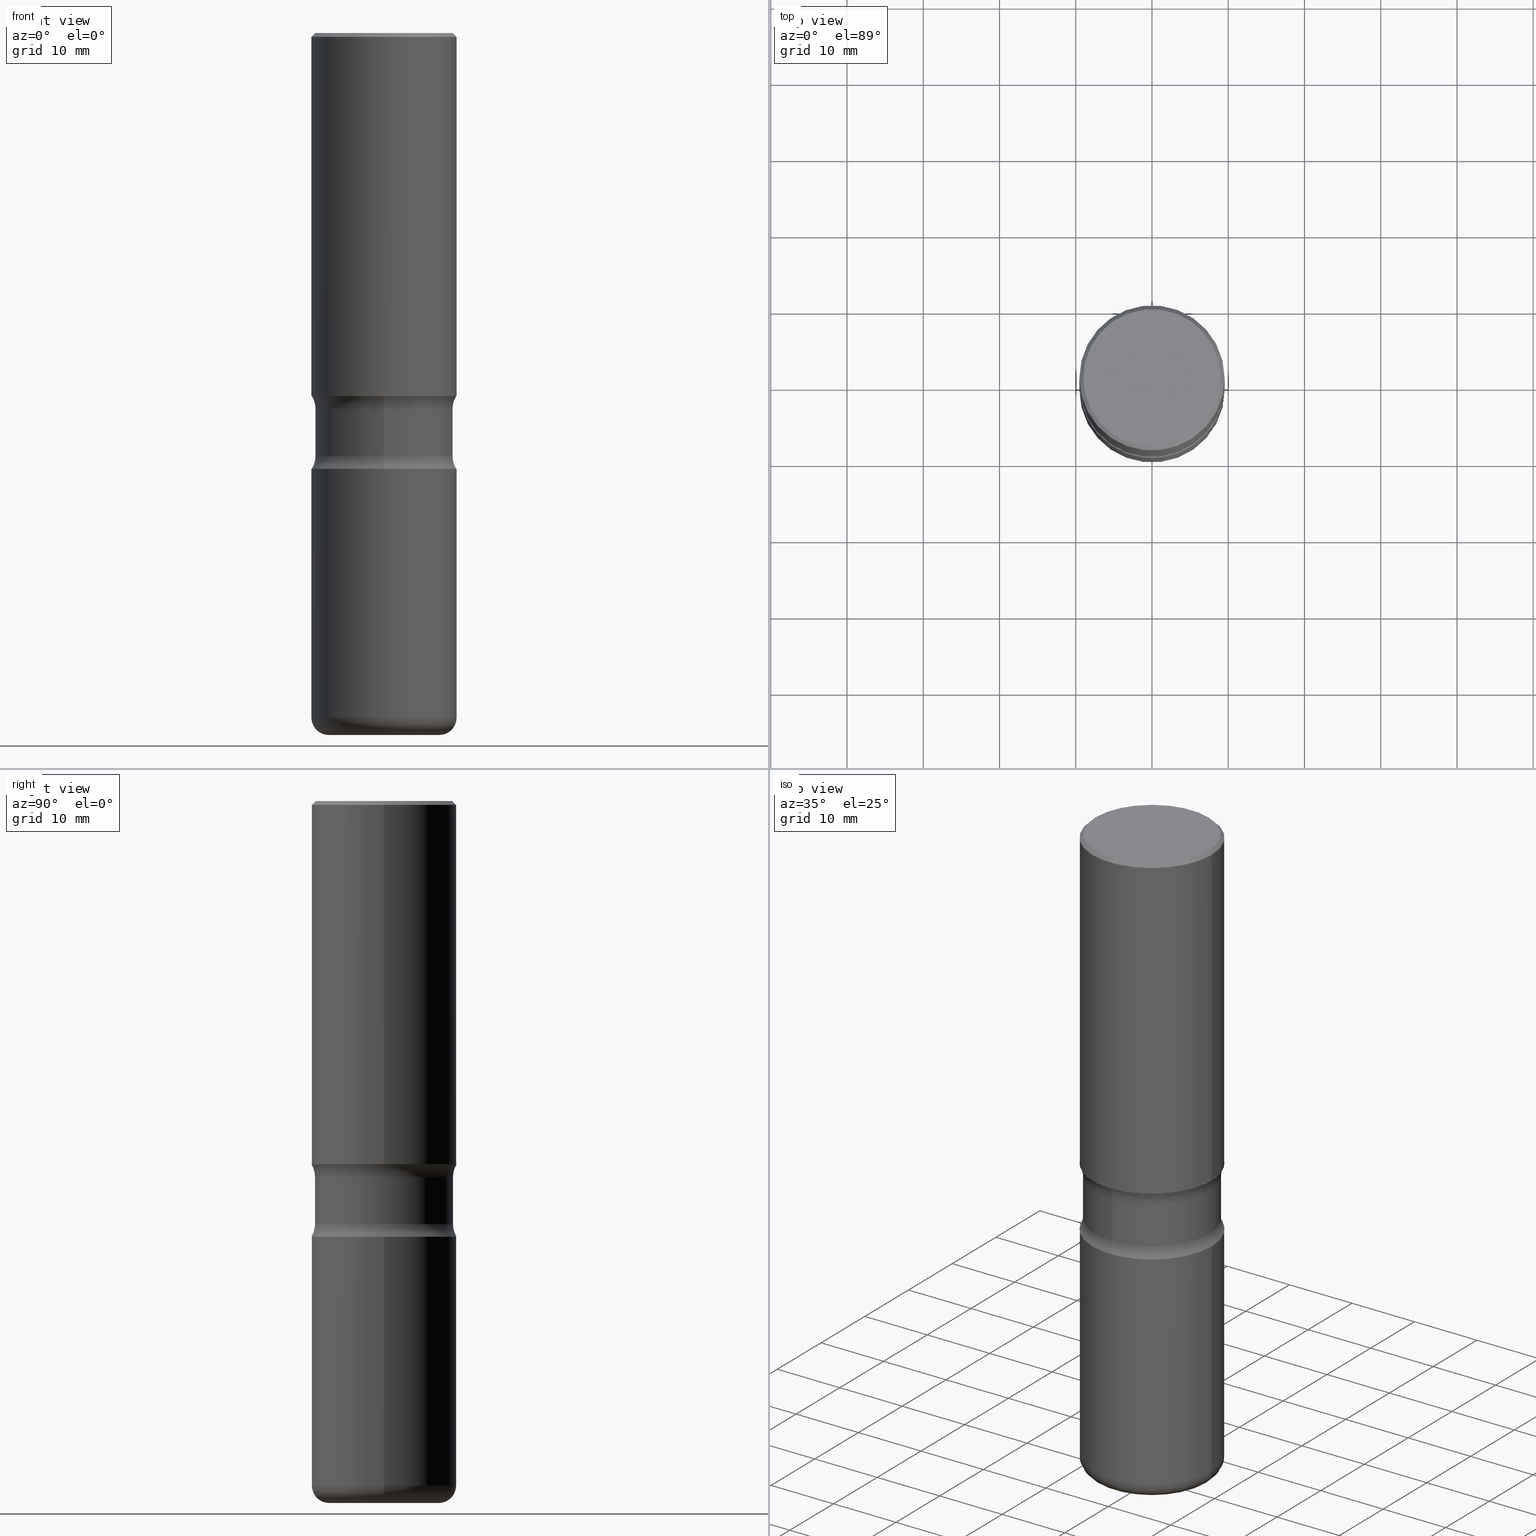
[diagram: canonical four-view strip — front | top / right | iso, engineering-drawing reading convention]
A machine part, canonical four-view strip (front | top / right | iso — engineering-drawing reading convention). The complete STEP part file that produces these views, byte-faithful:
ISO-10303-21;
HEADER;
FILE_DESCRIPTION (( 'STEP AP203' ),
    '1' );
FILE_NAME ('34114.STEP',
    '2024-03-01T23:05:25',
    ( '' ),
    ( '' ),
    'SwSTEP 2.0',
    'SolidWorks 2023',
    '' );
FILE_SCHEMA (( 'CONFIG_CONTROL_DESIGN' ));
ENDSEC;

DATA;
#1 = DIRECTION ( 'NONE',  ( -2.445468806185136597E-29, 3.491481338843145583E-15, 1.000000000000000000 ) ) ;
#2 = AXIS2_PLACEMENT_3D ( 'NONE', #443, #350, #315 ) ;
#3 = AXIS2_PLACEMENT_3D ( 'NONE', #113, #199, #242 ) ;
#4 = DIRECTION ( 'NONE',  ( -2.445468806185136597E-29, 3.491481338843145583E-15, 1.000000000000000000 ) ) ;
#5 = DIRECTION ( 'NONE',  ( -2.445468806185136597E-29, 3.491481338843145583E-15, 1.000000000000000000 ) ) ;
#6 = ORIENTED_EDGE ( 'NONE', *, *, #20, .T. ) ;
#7 = DIRECTION ( 'NONE',  ( 1.000000000000000000, -6.982962677686265922E-15, 4.876176775795935793E-29 ) ) ;
#8 = ADVANCED_FACE ( 'NONE', ( #183 ), #86, .T. ) ;
#9 = LINE ( 'NONE', #526, #460 ) ;
#10 = AXIS2_PLACEMENT_3D ( 'NONE', #505, #550, #253 ) ;
#11 = CIRCLE ( 'NONE', #402, 0.3750000000000003886 ) ;
#12 = CC_DESIGN_APPROVAL ( #281, ( #88 ) ) ;
#13 = CARTESIAN_POINT ( 'NONE',  ( 2.489426194595200956E-15, 0.3564999999999931557, -1.940442723048482199 ) ) ;
#14 = EDGE_LOOP ( 'NONE', ( #177, #515, #106, #327 ) ) ;
#15 = EDGE_LOOP ( 'NONE', ( #398, #235, #65, #166 ) ) ;
#16 = CARTESIAN_POINT ( 'NONE',  ( -1.043851414335219820E-46, 1.490343170380447200E-32, 4.268512490100411279E-18 ) ) ;
#17 = EDGE_CURVE ( 'NONE', #92, #85, #174, .T. ) ;
#18 = DIRECTION ( 'NONE',  ( -2.445468806185136597E-29, 3.491481338843145583E-15, 1.000000000000000000 ) ) ;
#19 = AXIS2_PLACEMENT_3D ( 'NONE', #534, #267, #404 ) ;
#20 = EDGE_CURVE ( 'NONE', #190, #343, #378, .T. ) ;
#21 = CARTESIAN_POINT ( 'NONE',  ( 2.618611004132398137E-15, 0.3749999999999938383, -1.875000000000001998 ) ) ;
#22 = CARTESIAN_POINT ( 'NONE',  ( -0.3750000000000002220, -9.677851273710145206E-15, -3.535000000000000586 ) ) ;
#23 = ORIENTED_EDGE ( 'NONE', *, *, #151, .T. ) ;
#24 = DIRECTION ( 'NONE',  ( 2.412880205859895394E-29, -3.538150069336831953E-15, -1.000000000000000000 ) ) ;
#25 = EDGE_LOOP ( 'NONE', ( #432, #71 ) ) ;
#26 = UNCERTAINTY_MEASURE_WITH_UNIT (LENGTH_MEASURE( 1.000000000000000082E-05 ), #313, 'distance_accuracy_value', 'NONE');
#27 = CC_DESIGN_PERSON_AND_ORGANIZATION_ASSIGNMENT ( #365, #329, ( #111 ) ) ;
#28 = ORIENTED_EDGE ( 'NONE', *, *, #416, .F. ) ;
#29 = EDGE_CURVE ( 'NONE', #306, #426, #167, .T. ) ;
#30 = DIRECTION ( 'NONE',  ( 6.982962677686265922E-15, 1.000000000000000000, -3.831483862081716154E-15 ) ) ;
#31 = EDGE_LOOP ( 'NONE', ( #319, #399 ) ) ;
#32 = AXIS2_PLACEMENT_3D ( 'NONE', #364, #544, #510 ) ;
#33 = APPROVAL_DATE_TIME ( #116, #115 ) ;
#34 = CARTESIAN_POINT ( 'NONE',  ( -3.303329785926938795E-15, -0.4815000000000076996, -2.184557276951518912 ) ) ;
#35 = CALENDAR_DATE ( 2024, 1, 3 ) ;
#36 = CARTESIAN_POINT ( 'NONE',  ( -1.043851414335219820E-46, 1.490343170380447200E-32, 4.268512490100411279E-18 ) ) ;
#37 = DIRECTION ( 'NONE',  ( 2.412880205859895394E-29, -3.538150069336831953E-15, -1.000000000000000000 ) ) ;
#38 = CALENDAR_DATE ( 2024, 1, 3 ) ;
#39 = DIRECTION ( 'NONE',  ( -2.445468806185136597E-29, 3.491481338843145583E-15, 1.000000000000000000 ) ) ;
#40 = APPROVAL ( #334, 'UNSPECIFIED' ) ;
#41 = CIRCLE ( 'NONE', #168, 0.2850000000000004197 ) ;
#42 = DATE_AND_TIME ( #422, #201 ) ;
#43 = DIRECTION ( 'NONE',  ( 2.438088387897960049E-29, -3.491481338843145188E-15, -1.000000000000000000 ) ) ;
#44 = VERTEX_POINT ( 'NONE', #215 ) ;
#45 = DIRECTION ( 'NONE',  ( 1.000000000000000000, -6.982962677686265922E-15, 0.000000000000000000 ) ) ;
#46 = MANIFOLD_SOLID_BREP ( 'Body-Move/Copy2[4]', #269 ) ;
#47 = FACE_OUTER_BOUND ( 'NONE', #314, .T. ) ;
#48 = PRODUCT_DEFINITION_SHAPE ( 'NONE', 'NONE',  #461 ) ;
#49 = DIRECTION ( 'NONE',  ( 6.982962677686265922E-15, 1.000000000000000000, -3.538150069336831953E-15 ) ) ;
#50 = DIRECTION ( 'NONE',  ( 2.412880205859895394E-29, -3.538150069336831953E-15, -1.000000000000000000 ) ) ;
#51 = EDGE_CURVE ( 'NONE', #85, #92, #390, .T. ) ;
#52 = CIRCLE ( 'NONE', #110, 0.08999999999999962197 ) ;
#53 = DIRECTION ( 'NONE',  ( 1.000000000000000000, -6.982962677686265922E-15, 4.876176775795935793E-29 ) ) ;
#54 = APPLICATION_CONTEXT ( 'configuration controlled 3d designs of mechanical parts and assemblies' ) ;
#55 = DIRECTION ( 'NONE',  ( -2.445468806185136877E-29, 3.491481338843145188E-15, 1.000000000000000000 ) ) ;
#56 = DIRECTION ( 'NONE',  ( 2.412880205859895114E-29, -3.538150069336831953E-15, -1.000000000000000000 ) ) ;
#57 = ADVANCED_FACE ( 'NONE', ( #141 ), #179, .F. ) ;
#58 = CARTESIAN_POINT ( 'NONE',  ( -2.509227142684884613E-15, -0.3565000000000076441, -2.184557276951519356 ) ) ;
#59 = VERTEX_POINT ( 'NONE', #13 ) ;
#60 = CIRCLE ( 'NONE', #10, 0.3750000000000003886 ) ;
#61 = DIRECTION ( 'NONE',  ( 1.000000000000000000, -6.982962677686276177E-15, 0.000000000000000000 ) ) ;
#62 = TOROIDAL_SURFACE ( 'NONE', #361, 0.2850000000000004197, 0.08999999999999963585 ) ;
#63 = ORIENTED_EDGE ( 'NONE', *, *, #185, .T. ) ;
#64 = DIRECTION ( 'NONE',  ( 2.412880205859895394E-29, -3.538150069336831953E-15, -1.000000000000000000 ) ) ;
#65 = ORIENTED_EDGE ( 'NONE', *, *, #29, .T. ) ;
#66 = CARTESIAN_POINT ( 'NONE',  ( 0.2850000000000004197, -1.433253089595111070E-14, -3.535000000000000586 ) ) ;
#67 = ORIENTED_EDGE ( 'NONE', *, *, #130, .F. ) ;
#68 = ORIENTED_EDGE ( 'NONE', *, *, #514, .T. ) ;
#69 = DIRECTION ( 'NONE',  ( -2.445468806185136597E-29, 3.491481338843145583E-15, 1.000000000000000000 ) ) ;
#70 = CIRCLE ( 'NONE', #391, 0.3750000000000002220 ) ;
#71 = ORIENTED_EDGE ( 'NONE', *, *, #309, .F. ) ;
#72 = CARTESIAN_POINT ( 'NONE',  ( 5.344399362855309954E-29, -7.624286837305509561E-15, -2.184557276951520688 ) ) ;
#73 = EDGE_CURVE ( 'NONE', #475, #448, #518, .T. ) ;
#74 = SECURITY_CLASSIFICATION_LEVEL ( 'unclassified' ) ;
#75 = DIRECTION ( 'NONE',  ( -1.000000000000000000, 6.982962677686265922E-15, -4.876176775795935793E-29 ) ) ;
#76 = CARTESIAN_POINT ( 'NONE',  ( 0.3750000000000002220, -2.642516375941189606E-15, -0.02000000000000013572 ) ) ;
#77 = AXIS2_PLACEMENT_3D ( 'NONE', #488, #456, #236 ) ;
#78 = LOCAL_TIME ( 18, 5, 25.00000000000000000, #556 ) ;
#79 = DIRECTION ( 'NONE',  ( 1.000000000000000000, -6.860497997771530774E-15, 4.840227352509949110E-29 ) ) ;
#80 = ADVANCED_FACE ( 'NONE', ( #548 ), #136, .F. ) ;
#81 = CALENDAR_DATE ( 2024, 1, 3 ) ;
#82 = CARTESIAN_POINT ( 'NONE',  ( 5.502304813916559585E-29, -7.855833012397080026E-15, -2.250000000000000888 ) ) ;
#83 = APPROVAL_ROLE ( '' ) ;
#84 = CYLINDRICAL_SURFACE ( 'NONE', #154, 0.3564999999999999836 ) ;
#85 = VERTEX_POINT ( 'NONE', #22 ) ;
#86 = CONICAL_SURFACE ( 'NONE', #261, 0.3750000000000002220, 0.7853981633974463916 ) ;
#87 = AXIS2_PLACEMENT_3D ( 'NONE', #305, #449, #99 ) ;
#88 = SECURITY_CLASSIFICATION ( '', '', #74 ) ;
#89 = CARTESIAN_POINT ( 'NONE',  ( 5.502304813916559585E-29, -7.855833012397080026E-15, -2.250000000000000888 ) ) ;
#90 = CARTESIAN_POINT ( 'NONE',  ( -2.445767536205462640E-15, -0.3565000000000126956, -3.624999999999999556 ) ) ;
#91 = ADVANCED_FACE ( 'NONE', ( #540 ), #421, .F. ) ;
#92 = VERTEX_POINT ( 'NONE', #206 ) ;
#93 = DIRECTION ( 'NONE',  ( 1.000000000000000000, -6.982962677686267499E-15, 4.883557194083113462E-29 ) ) ;
#94 = DIRECTION ( 'NONE',  ( 1.000000000000000000, -6.982962677686266711E-15, 4.876231632511985941E-29 ) ) ;
#95 = DIRECTION ( 'NONE',  ( -1.000000000000000000, 6.982962677686265922E-15, -4.883557194083112340E-29 ) ) ;
#96 = CIRCLE ( 'NONE', #425, 0.3564999999999999836 ) ;
#97 = DIRECTION ( 'NONE',  ( 2.412880205859895394E-29, -3.538150069336831953E-15, -1.000000000000000000 ) ) ;
#98 = DIRECTION ( 'NONE',  ( -2.445468806185136597E-29, 3.491481338843145583E-15, 1.000000000000000000 ) ) ;
#99 = DIRECTION ( 'NONE',  ( -6.982962677686269077E-15, -1.000000000000000000, 0.000000000000000000 ) ) ;
#100 = ORIENTED_EDGE ( 'NONE', *, *, #405, .T. ) ;
#101 = DIMENSIONAL_EXPONENTS ( 1.000000000000000000, 0.000000000000000000, 0.000000000000000000, 0.000000000000000000, 0.000000000000000000, 0.000000000000000000, 0.000000000000000000 ) ;
#102 = CIRCLE ( 'NONE', #446, 0.3550000000000001488 ) ;
#103 = ORIENTED_EDGE ( 'NONE', *, *, #440, .T. ) ;
#104 = DIRECTION ( 'NONE',  ( 0.7071067811865461294, -7.319954787623251312E-15, -0.7071067811865489050 ) ) ;
#105 = CARTESIAN_POINT ( 'NONE',  ( 5.342266676109687941E-29, -7.627340966110231428E-15, -2.184557276951520688 ) ) ;
#106 = ORIENTED_EDGE ( 'NONE', *, *, #160, .F. ) ;
#107 = AXIS2_PLACEMENT_3D ( 'NONE', #188, #37, #511 ) ;
#108 = ORIENTED_EDGE ( 'NONE', *, *, #368, .F. ) ;
#109 = CC_DESIGN_DATE_AND_TIME_ASSIGNMENT ( #169, #119, ( #88 ) ) ;
#110 = AXIS2_PLACEMENT_3D ( 'NONE', #366, #376, #560 ) ;
#111 = PRODUCT_DEFINITION_FORMATION_WITH_SPECIFIED_SOURCE ( 'ANY', '', #118, .NOT_KNOWN. ) ;
#112 = APPROVAL_DATE_TIME ( #42, #281 ) ;
#113 = CARTESIAN_POINT ( 'NONE',  ( 5.342266676109687941E-29, -7.627340966110231428E-15, -2.184557276951520688 ) ) ;
#114 = CARTESIAN_POINT ( 'NONE',  ( 4.755380187780347497E-29, -6.760572911487338460E-15, -1.940442723048480866 ) ) ;
#115 = APPROVAL ( #375, 'UNSPECIFIED' ) ;
#116 = DATE_AND_TIME ( #81, #78 ) ;
#117 = DIRECTION ( 'NONE',  ( 6.982962677686266711E-15, 1.000000000000000000, -3.642463991552348591E-15 ) ) ;
#118 = PRODUCT ( '34114', '34114', '', ( #290 ) ) ;
#119 = DATE_TIME_ROLE ( 'classification_date' ) ;
#120 = CARTESIAN_POINT ( 'NONE',  ( 0.3750000000000003886, -2.618611004132352383E-15, 1.828566290923477884E-29 ) ) ;
#121 = ORIENTED_EDGE ( 'NONE', *, *, #405, .F. ) ;
#122 = DIRECTION ( 'NONE',  ( -1.000000000000000000, 6.982962677686266711E-15, 0.000000000000000000 ) ) ;
#123 = CC_DESIGN_PERSON_AND_ORGANIZATION_ASSIGNMENT ( #369, #508, ( #111 ) ) ;
#124 = AXIS2_PLACEMENT_3D ( 'NONE', #285, #162, #424 ) ;
#125 = EDGE_CURVE ( 'NONE', #213, #303, #434, .T. ) ;
#126 = CIRCLE ( 'NONE', #278, 0.3564999999999999281 ) ;
#127 = CARTESIAN_POINT ( 'NONE',  ( 0.000000000000000000, 0.000000000000000000, 0.000000000000000000 ) ) ;
#128 = DIRECTION ( 'NONE',  ( 1.000000000000000000, -6.982962677686265922E-15, 4.876176775795935793E-29 ) ) ;
#129 = ADVANCED_BREP_SHAPE_REPRESENTATION ( '34114', ( #409, #219, #46, #135 ), #413 ) ;
#130 = EDGE_CURVE ( 'NONE', #213, #44, #276, .T. ) ;
#131 = PLANE ( 'NONE',  #243 ) ;
#132 = TOROIDAL_SURFACE ( 'NONE', #436, 0.4815000000000000391, 0.1250000000000000278 ) ;
#133 = ADVANCED_FACE ( 'NONE', ( #467 ), #217, .T. ) ;
#134 = CARTESIAN_POINT ( 'NONE',  ( 5.344399362855309954E-29, -7.624286837305509561E-15, -2.184557276951520688 ) ) ;
#135 = AXIS2_PLACEMENT_3D ( 'NONE', #551, #280, #363 ) ;
#136 = PLANE ( 'NONE',  #2 ) ;
#137 = FACE_OUTER_BOUND ( 'NONE', #14, .T. ) ;
#138 = ORIENTED_EDGE ( 'NONE', *, *, #265, .T. ) ;
#139 = DIRECTION ( 'NONE',  ( 1.000000000000000000, -6.860497997771530774E-15, 4.840227352509949110E-29 ) ) ;
#140 = VERTEX_POINT ( 'NONE', #76 ) ;
#141 = FACE_OUTER_BOUND ( 'NONE', #490, .T. ) ;
#142 = CC_DESIGN_PERSON_AND_ORGANIZATION_ASSIGNMENT ( #321, #288, ( #88 ) ) ;
#143 = ADVANCED_FACE ( 'NONE', ( #558 ), #197, .F. ) ;
#144 = CARTESIAN_POINT ( 'NONE',  ( 4.585254011597132801E-29, -6.546527510330900285E-15, -1.875000000000000666 ) ) ;
#145 = ORIENTED_EDGE ( 'NONE', *, *, #20, .F. ) ;
#146 = DIRECTION ( 'NONE',  ( 1.000000000000000000, -6.982962677686267499E-15, 4.883557194083113462E-29 ) ) ;
#147 = AXIS2_PLACEMENT_3D ( 'NONE', #385, #4, #7 ) ;
#148 = CARTESIAN_POINT ( 'NONE',  ( 0.3750000000000002220, -2.642516375941189606E-15, -0.02000000000000013572 ) ) ;
#149 = PRODUCT_RELATED_PRODUCT_CATEGORY ( 'detail', '', ( #118 ) ) ;
#150 = CARTESIAN_POINT ( 'NONE',  ( 8.644732229864458497E-29, -1.234238653281052248E-14, -3.535000000000000586 ) ) ;
#151 = EDGE_CURVE ( 'NONE', #238, #343, #230, .T. ) ;
#152 = CARTESIAN_POINT ( 'NONE',  ( 8.644732229864458497E-29, -1.234238653281052248E-14, -3.535000000000000586 ) ) ;
#153 = APPROVAL_ROLE ( '' ) ;
#154 = AXIS2_PLACEMENT_3D ( 'NONE', #503, #293, #239 ) ;
#155 = AXIS2_PLACEMENT_3D ( 'NONE', #401, #353, #240 ) ;
#156 = CIRCLE ( 'NONE', #220, 0.3564999999999999836 ) ;
#157 = ORIENTED_EDGE ( 'NONE', *, *, #125, .T. ) ;
#158 = PERSON_AND_ORGANIZATION_ROLE ( 'creator' ) ;
#159 = FACE_OUTER_BOUND ( 'NONE', #15, .T. ) ;
#160 = EDGE_CURVE ( 'NONE', #287, #271, #60, .T. ) ;
#161 = COORDINATED_UNIVERSAL_TIME_OFFSET ( 5, 0, .BEHIND. ) ;
#162 = DIRECTION ( 'NONE',  ( -2.445468806185136597E-29, 3.491481338843145583E-15, 1.000000000000000000 ) ) ;
#163 = CC_DESIGN_PERSON_AND_ORGANIZATION_ASSIGNMENT ( #164, #158, ( #461 ) ) ;
#164 = PERSON_AND_ORGANIZATION ( #474, #323 ) ;
#165 = DIRECTION ( 'NONE',  ( 2.412880205859895394E-29, -3.538150069336831953E-15, -1.000000000000000000 ) ) ;
#166 = ORIENTED_EDGE ( 'NONE', *, *, #341, .T. ) ;
#167 = CIRCLE ( 'NONE', #493, 0.1250000000000000278 ) ;
#168 = AXIS2_PLACEMENT_3D ( 'NONE', #415, #39, #373 ) ;
#169 = DATE_AND_TIME ( #38, #483 ) ;
#170 = CARTESIAN_POINT ( 'NONE',  ( 4.890937612370306439E-31, -6.982962677686338448E-17, -0.02000000000000013572 ) ) ;
#171 = CYLINDRICAL_SURFACE ( 'NONE', #32, 0.3750000000000003886 ) ;
#172 = ADVANCED_FACE ( 'NONE', ( #337 ), #84, .T. ) ;
#173 = CARTESIAN_POINT ( 'NONE',  ( 4.585254011597132801E-29, -6.546527510330900285E-15, -1.875000000000000666 ) ) ;
#174 = CIRCLE ( 'NONE', #400, 0.3750000000000003886 ) ;
#175 = CARTESIAN_POINT ( 'NONE',  ( -0.2850000000000004197, -1.015471216505013142E-14, -3.624999999999999556 ) ) ;
#176 = DIRECTION ( 'NONE',  ( -1.000000000000000000, 6.982962677686265922E-15, -4.876176775795935793E-29 ) ) ;
#177 = ORIENTED_EDGE ( 'NONE', *, *, #17, .T. ) ;
#178 = CYLINDRICAL_SURFACE ( 'NONE', #532, 0.3750000000000003886 ) ;
#179 = TOROIDAL_SURFACE ( 'NONE', #107, 0.4814999999999999281, 0.1249999999999999861 ) ;
#180 = AXIS2_PLACEMENT_3D ( 'NONE', #89, #521, #264 ) ;
#181 = FACE_OUTER_BOUND ( 'NONE', #31, .T. ) ;
#182 = EDGE_CURVE ( 'NONE', #448, #475, #389, .T. ) ;
#183 = FACE_OUTER_BOUND ( 'NONE', #506, .T. ) ;
#184 = CIRCLE ( 'NONE', #471, 0.08999999999999962197 ) ;
#185 = EDGE_CURVE ( 'NONE', #190, #59, #541, .T. ) ;
#186 = ORIENTED_EDGE ( 'NONE', *, *, #547, .T. ) ;
#187 = VECTOR ( 'NONE', #291, 39.37007874015748143 ) ;
#188 = CARTESIAN_POINT ( 'NONE',  ( 4.745292149404004444E-29, -6.775019556617748882E-15, -1.940442723048480866 ) ) ;
#189 = FACE_OUTER_BOUND ( 'NONE', #224, .T. ) ;
#190 = VERTEX_POINT ( 'NONE', #335 ) ;
#191 = DESIGN_CONTEXT ( 'detailed design', #54, 'design' ) ;
#192 = CARTESIAN_POINT ( 'NONE',  ( -2.572686749164271482E-15, -0.3750000000000082712, -2.249999999999999556 ) ) ;
#193 = CC_DESIGN_PERSON_AND_ORGANIZATION_ASSIGNMENT ( #468, #543, ( #118 ) ) ;
#194 = EDGE_CURVE ( 'NONE', #140, #303, #360, .T. ) ;
#195 = PERSON_AND_ORGANIZATION ( #474, #323 ) ;
#196 = CARTESIAN_POINT ( 'NONE',  ( 8.644732229864458497E-29, -1.234238653281052248E-14, -3.535000000000000586 ) ) ;
#197 = PLANE ( 'NONE',  #481 ) ;
#198 = COORDINATED_UNIVERSAL_TIME_OFFSET ( 5, 0, .BEHIND. ) ;
#199 = DIRECTION ( 'NONE',  ( 2.412880205859895394E-29, -3.538150069336831953E-15, -1.000000000000000000 ) ) ;
#200 = TOROIDAL_SURFACE ( 'NONE', #19, 0.4814999999999999281, 0.1249999999999999861 ) ;
#201 = LOCAL_TIME ( 18, 5, 25.00000000000000000, #252 ) ;
#202 = DATE_TIME_ROLE ( 'creation_date' ) ;
#203 = DIRECTION ( 'NONE',  ( -2.445468806185136877E-29, 3.491481338843145188E-15, 1.000000000000000000 ) ) ;
#204 = PLANE ( 'NONE',  #255 ) ;
#205 = VERTEX_POINT ( 'NONE', #249 ) ;
#206 = CARTESIAN_POINT ( 'NONE',  ( 0.3750000000000002220, -1.496099753694287407E-14, -3.535000000000000586 ) ) ;
#207 = DIRECTION ( 'NONE',  ( 6.982962677686266711E-15, 1.000000000000000000, -3.831483862081716154E-15 ) ) ;
#208 = EDGE_CURVE ( 'NONE', #44, #140, #463, .T. ) ;
#209 = ORIENTED_EDGE ( 'NONE', *, *, #484, .F. ) ;
#210 = VECTOR ( 'NONE', #55, 39.37007874015748143 ) ;
#211 = APPROVAL_PERSON_ORGANIZATION ( #195, #115, #153 ) ;
#212 = CARTESIAN_POINT ( 'NONE',  ( 5.502304813916559585E-29, -7.855833012397080026E-15, -2.250000000000000888 ) ) ;
#213 = VERTEX_POINT ( 'NONE', #332 ) ;
#214 = CYLINDRICAL_SURFACE ( 'NONE', #147, 0.3750000000000003886 ) ;
#215 = CARTESIAN_POINT ( 'NONE',  ( 0.3750000000000004441, -9.165138514463253457E-15, -1.875000000000000666 ) ) ;
#216 = FACE_OUTER_BOUND ( 'NONE', #346, .T. ) ;
#217 = CONICAL_SURFACE ( 'NONE', #423, 0.3750000000000002220, 0.7853981633974463916 ) ;
#218 = CIRCLE ( 'NONE', #295, 0.3750000000000004441 ) ;
#219 = MANIFOLD_SOLID_BREP ( 'Body-Move/Copy2[2]', #507 ) ;
#220 = AXIS2_PLACEMENT_3D ( 'NONE', #72, #24, #352 ) ;
#221 = EDGE_CURVE ( 'NONE', #92, #287, #410, .T. ) ;
#222 = DIRECTION ( 'NONE',  ( 2.412880205859895394E-29, -3.538150069336831953E-15, -1.000000000000000000 ) ) ;
#223 = ORIENTED_EDGE ( 'NONE', *, *, #51, .F. ) ;
#224 = EDGE_LOOP ( 'NONE', ( #457, #430, #316, #28 ) ) ;
#225 =( LENGTH_UNIT ( ) NAMED_UNIT ( * ) SI_UNIT ( $, .METRE. ) );
#226 = ORIENTED_EDGE ( 'NONE', *, *, #309, .T. ) ;
#227 = ORIENTED_EDGE ( 'NONE', *, *, #194, .T. ) ;
#228 =( NAMED_UNIT ( * ) SI_UNIT ( $, .STERADIAN. ) SOLID_ANGLE_UNIT ( ) );
#229 = EDGE_CURVE ( 'NONE', #59, #190, #126, .T. ) ;
#230 = CIRCLE ( 'NONE', #499, 0.1250000000000000278 ) ;
#231 = AXIS2_PLACEMENT_3D ( 'NONE', #349, #98, #344 ) ;
#232 = ORIENTED_EDGE ( 'NONE', *, *, #274, .F. ) ;
#233 = ORIENTED_EDGE ( 'NONE', *, *, #208, .F. ) ;
#234 = EDGE_CURVE ( 'NONE', #433, #85, #52, .T. ) ;
#235 = ORIENTED_EDGE ( 'NONE', *, *, #453, .F. ) ;
#236 = DIRECTION ( 'NONE',  ( -1.000000000000000000, 6.982962677686265922E-15, -4.876176775795935793E-29 ) ) ;
#237 = ORIENTED_EDGE ( 'NONE', *, *, #330, .F. ) ;
#238 = VERTEX_POINT ( 'NONE', #192 ) ;
#239 = DIRECTION ( 'NONE',  ( 6.982962677686266711E-15, 1.000000000000000000, -3.065187089665372450E-15 ) ) ;
#240 = DIRECTION ( 'NONE',  ( 6.982962677686266711E-15, 1.000000000000000000, -3.642463991552348591E-15 ) ) ;
#241 = ADVANCED_FACE ( 'NONE', ( #189 ), #171, .T. ) ;
#242 = DIRECTION ( 'NONE',  ( 6.982962677686265922E-15, 1.000000000000000000, -3.538150069336831953E-15 ) ) ;
#243 = AXIS2_PLACEMENT_3D ( 'NONE', #347, #479, #176 ) ;
#244 = APPLICATION_PROTOCOL_DEFINITION ( 'international standard', 'config_control_design', 1994, #54 ) ;
#245 = DIRECTION ( 'NONE',  ( 2.412880205859895394E-29, -3.538150069336831953E-15, -1.000000000000000000 ) ) ;
#246 = CARTESIAN_POINT ( 'NONE',  ( 4.585254011597132801E-29, -6.546527510330900285E-15, -1.875000000000000666 ) ) ;
#247 = ORIENTED_EDGE ( 'NONE', *, *, #368, .T. ) ;
#248 = COORDINATED_UNIVERSAL_TIME_OFFSET ( 5, 0, .BEHIND. ) ;
#249 = CARTESIAN_POINT ( 'NONE',  ( 0.2850000000000004197, -1.464676421644699081E-14, -3.624999999999999556 ) ) ;
#250 = ORIENTED_EDGE ( 'NONE', *, *, #341, .F. ) ;
#251 = ADVANCED_FACE ( 'NONE', ( #159 ), #322, .F. ) ;
#252 = COORDINATED_UNIVERSAL_TIME_OFFSET ( 5, 0, .BEHIND. ) ;
#253 = DIRECTION ( 'NONE',  ( 1.000000000000000000, -6.982962677686265922E-15, 0.000000000000000000 ) ) ;
#254 = CLOSED_SHELL ( 'NONE', ( #427, #536, #478, #301, #359, #143 ) ) ;
#255 = AXIS2_PLACEMENT_3D ( 'NONE', #173, #519, #53 ) ;
#256 = FACE_OUTER_BOUND ( 'NONE', #388, .T. ) ;
#257 = ORIENTED_EDGE ( 'NONE', *, *, #504, .T. ) ;
#258 = CARTESIAN_POINT ( 'NONE',  ( -0.3550000000000001488, 2.513866563967057041E-15, 4.268512490082953109E-18 ) ) ;
#259 = ORIENTED_EDGE ( 'NONE', *, *, #520, .T. ) ;
#260 = DIRECTION ( 'NONE',  ( 2.412880205859895114E-29, -3.538150069336831953E-15, -1.000000000000000000 ) ) ;
#261 = AXIS2_PLACEMENT_3D ( 'NONE', #355, #412, #317 ) ;
#262 = CC_DESIGN_APPROVAL ( #40, ( #461 ) ) ;
#263 = DIRECTION ( 'NONE',  ( -2.445468806185136597E-29, 3.491481338843145583E-15, 1.000000000000000000 ) ) ;
#264 = DIRECTION ( 'NONE',  ( 1.000000000000000000, -6.982962677686265922E-15, 0.000000000000000000 ) ) ;
#265 = EDGE_CURVE ( 'NONE', #275, #303, #418, .T. ) ;
#266 = EDGE_CURVE ( 'NONE', #205, #433, #41, .T. ) ;
#267 = DIRECTION ( 'NONE',  ( 2.412880205859895394E-29, -3.538150069336831953E-15, -1.000000000000000000 ) ) ;
#268 = EDGE_LOOP ( 'NONE', ( #539, #393, #545, #396 ) ) ;
#269 = CLOSED_SHELL ( 'NONE', ( #172, #491, #441, #57, #91, #80, #251, #324 ) ) ;
#270 = DIRECTION ( 'NONE',  ( -6.982962677686266711E-15, -1.000000000000000000, 3.491481338843145583E-15 ) ) ;
#271 = VERTEX_POINT ( 'NONE', #328 ) ;
#272 = ORIENTED_EDGE ( 'NONE', *, *, #440, .F. ) ;
#273 = FACE_OUTER_BOUND ( 'NONE', #25, .T. ) ;
#274 = EDGE_CURVE ( 'NONE', #358, #275, #102, .T. ) ;
#275 = VERTEX_POINT ( 'NONE', #258 ) ;
#276 = CIRCLE ( 'NONE', #382, 0.3750000000000004441 ) ;
#277 = FACE_OUTER_BOUND ( 'NONE', #268, .T. ) ;
#278 = AXIS2_PLACEMENT_3D ( 'NONE', #469, #420, #30 ) ;
#279 = EDGE_LOOP ( 'NONE', ( #451, #103 ) ) ;
#280 = DIRECTION ( 'NONE',  ( 0.000000000000000000, 0.000000000000000000, 1.000000000000000000 ) ) ;
#281 = APPROVAL ( #500, 'UNSPECIFIED' ) ;
#282 = ADVANCED_FACE ( 'NONE', ( #181 ), #131, .F. ) ;
#283 = CARTESIAN_POINT ( 'NONE',  ( -0.3750000000000002220, 2.548781377355488296E-15, -0.02000000000000013572 ) ) ;
#284 = DATE_AND_TIME ( #465, #455 ) ;
#285 = CARTESIAN_POINT ( 'NONE',  ( 4.890937612370306439E-31, -6.982962677686338448E-17, -0.02000000000000013572 ) ) ;
#286 = AXIS2_PLACEMENT_3D ( 'NONE', #212, #222, #530 ) ;
#287 = VERTEX_POINT ( 'NONE', #431 ) ;
#288 = PERSON_AND_ORGANIZATION_ROLE ( 'classification_officer' ) ;
#289 = DIRECTION ( 'NONE',  ( 6.982962677686265922E-15, 1.000000000000000000, -3.831483862081716154E-15 ) ) ;
#290 = MECHANICAL_CONTEXT ( 'NONE', #537, 'mechanical' ) ;
#291 = DIRECTION ( 'NONE',  ( -2.445468806185136877E-29, 3.491481338843145188E-15, 1.000000000000000000 ) ) ;
#292 = ORIENTED_EDGE ( 'NONE', *, *, #547, .F. ) ;
#293 = DIRECTION ( 'NONE',  ( 2.412880205859895394E-29, -3.538150069336831953E-15, -1.000000000000000000 ) ) ;
#294 = AXIS2_PLACEMENT_3D ( 'NONE', #114, #245, #289 ) ;
#295 = AXIS2_PLACEMENT_3D ( 'NONE', #397, #18, #357 ) ;
#296 = DIRECTION ( 'NONE',  ( -2.445468806185136597E-29, 3.491481338843145583E-15, 1.000000000000000000 ) ) ;
#297 = CARTESIAN_POINT ( 'NONE',  ( 8.820015096973915297E-29, -1.272078935773522598E-14, -3.625000000000000888 ) ) ;
#298 = CARTESIAN_POINT ( 'NONE',  ( 8.644732229864458497E-29, -1.234238653281052248E-14, -3.535000000000000586 ) ) ;
#299 = CC_DESIGN_SECURITY_CLASSIFICATION ( #88, ( #111 ) ) ;
#300 = LINE ( 'NONE', #379, #210 ) ;
#301 = ADVANCED_FACE ( 'NONE', ( #523 ), #333, .T. ) ;
#302 = DIRECTION ( 'NONE',  ( 2.412880205859895394E-29, -3.538150069336831953E-15, -1.000000000000000000 ) ) ;
#303 = VERTEX_POINT ( 'NONE', #480 ) ;
#304 = CARTESIAN_POINT ( 'NONE',  ( 3.362296529305990606E-15, 0.4814999999999923785, -2.184557276951522464 ) ) ;
#305 = CARTESIAN_POINT ( 'NONE',  ( 3.362296529305983901E-15, 0.4814999999999931557, -1.940442723048482421 ) ) ;
#306 = VERTEX_POINT ( 'NONE', #442 ) ;
#307 = AXIS2_PLACEMENT_3D ( 'NONE', #144, #496, #49 ) ;
#308 = CIRCLE ( 'NONE', #180, 0.3750000000000003886 ) ;
#309 = EDGE_CURVE ( 'NONE', #433, #205, #473, .T. ) ;
#310 = APPROVAL_PERSON_ORGANIZATION ( #502, #281, #83 ) ;
#311 = ORIENTED_EDGE ( 'NONE', *, *, #51, .T. ) ;
#312 = DIRECTION ( 'NONE',  ( 1.000000000000000000, -6.982962677686266711E-15, 4.876231632511985941E-29 ) ) ;
#313 =( CONVERSION_BASED_UNIT ( 'INCH', #394 ) LENGTH_UNIT ( ) NAMED_UNIT ( #101 ) );
#314 = EDGE_LOOP ( 'NONE', ( #411, #67 ) ) ;
#315 = DIRECTION ( 'NONE',  ( -6.982962677686265922E-15, -1.000000000000000000, 3.538150069336831953E-15 ) ) ;
#316 = ORIENTED_EDGE ( 'NONE', *, *, #208, .T. ) ;
#317 = DIRECTION ( 'NONE',  ( -1.000000000000000000, 6.982962677686266711E-15, 0.000000000000000000 ) ) ;
#318 = LINE ( 'NONE', #148, #494 ) ;
#319 = ORIENTED_EDGE ( 'NONE', *, *, #484, .T. ) ;
#320 = VECTOR ( 'NONE', #464, 39.37007874015748143 ) ;
#321 = PERSON_AND_ORGANIZATION ( #474, #323 ) ;
#322 = TOROIDAL_SURFACE ( 'NONE', #3, 0.4815000000000000391, 0.1250000000000000278 ) ;
#323 = ORGANIZATION ( 'UNSPECIFIED', 'UNSPECIFIED', '' ) ;
#324 = ADVANCED_FACE ( 'NONE', ( #216 ), #486, .T. ) ;
#325 = APPLICATION_PROTOCOL_DEFINITION ( 'international standard', 'config_control_design', 1994, #537 ) ;
#326 = ORIENTED_EDGE ( 'NONE', *, *, #514, .F. ) ;
#327 = ORIENTED_EDGE ( 'NONE', *, *, #221, .F. ) ;
#328 = CARTESIAN_POINT ( 'NONE',  ( -0.3750000000000003886, -7.434574513503423979E-15, -2.250000000000000888 ) ) ;
#329 = PERSON_AND_ORGANIZATION_ROLE ( 'creator' ) ;
#330 = EDGE_CURVE ( 'NONE', #85, #271, #300, .T. ) ;
#331 = AXIS2_PLACEMENT_3D ( 'NONE', #196, #553, #512 ) ;
#332 = CARTESIAN_POINT ( 'NONE',  ( -0.3750000000000004441, -6.436433094535026432E-16, -1.875000000000000666 ) ) ;
#333 = TOROIDAL_SURFACE ( 'NONE', #525, 0.2850000000000004197, 0.08999999999999963585 ) ;
#334 = APPROVAL_STATUS ( 'not_yet_approved' ) ;
#335 = CARTESIAN_POINT ( 'NONE',  ( -2.509227142684891319E-15, -0.3565000000000067004, -1.940442723048479534 ) ) ;
#336 = ORIENTED_EDGE ( 'NONE', *, *, #520, .F. ) ;
#337 = FACE_OUTER_BOUND ( 'NONE', #531, .T. ) ;
#338 = DIRECTION ( 'NONE',  ( -2.445468806185136597E-29, 3.491481338843145583E-15, 1.000000000000000000 ) ) ;
#339 = DIRECTION ( 'NONE',  ( -2.445468806185136597E-29, 3.491481338843145583E-15, 1.000000000000000000 ) ) ;
#340 = AXIS2_PLACEMENT_3D ( 'NONE', #444, #139, #528 ) ;
#341 = EDGE_CURVE ( 'NONE', #426, #343, #96, .T. ) ;
#342 = CARTESIAN_POINT ( 'NONE',  ( 0.3550000000000001488, -2.538996582575041837E-15, 4.268512490117958041E-18 ) ) ;
#343 = VERTEX_POINT ( 'NONE', #58 ) ;
#344 = DIRECTION ( 'NONE',  ( 1.000000000000000000, -6.982962677686264344E-15, 0.000000000000000000 ) ) ;
#345 = ORIENTED_EDGE ( 'NONE', *, *, #73, .F. ) ;
#346 = EDGE_LOOP ( 'NONE', ( #145, #63, #247, #326 ) ) ;
#347 = CARTESIAN_POINT ( 'NONE',  ( 2.478951750578625787E-15, 0.3550000000000001488, -1.237341619044267019E-15 ) ) ;
#348 = AXIS2_PLACEMENT_3D ( 'NONE', #297, #97, #439 ) ;
#349 = CARTESIAN_POINT ( 'NONE',  ( 8.864824422421120163E-29, -1.265661985330640259E-14, -3.624999999999999556 ) ) ;
#350 = DIRECTION ( 'NONE',  ( -2.412880205859895114E-29, 3.538150069336831953E-15, 1.000000000000000000 ) ) ;
#351 = ORIENTED_EDGE ( 'NONE', *, *, #29, .F. ) ;
#352 = DIRECTION ( 'NONE',  ( 6.982962677686266711E-15, 1.000000000000000000, -3.831483862081716154E-15 ) ) ;
#353 = DIRECTION ( 'NONE',  ( 2.412880205859895394E-29, -3.538150069336831953E-15, -1.000000000000000000 ) ) ;
#354 = AXIS2_PLACEMENT_3D ( 'NONE', #127, #339, #387 ) ;
#355 = CARTESIAN_POINT ( 'NONE',  ( 4.890937612370306439E-31, -6.982962677686338448E-17, -0.02000000000000013572 ) ) ;
#356 = DIRECTION ( 'NONE',  ( 6.982962677686265922E-15, 1.000000000000000000, -3.642463991552347014E-15 ) ) ;
#357 = DIRECTION ( 'NONE',  ( 1.000000000000000000, -6.982962677686265133E-15, 0.000000000000000000 ) ) ;
#358 = VERTEX_POINT ( 'NONE', #342 ) ;
#359 = ADVANCED_FACE ( 'NONE', ( #381 ), #472, .T. ) ;
#360 = CIRCLE ( 'NONE', #124, 0.3750000000000002220 ) ;
#361 = AXIS2_PLACEMENT_3D ( 'NONE', #150, #69, #146 ) ;
#362 = EDGE_LOOP ( 'NONE', ( #377, #100 ) ) ;
#363 = DIRECTION ( 'NONE',  ( 1.000000000000000000, 0.000000000000000000, 0.000000000000000000 ) ) ;
#364 = CARTESIAN_POINT ( 'NONE',  ( 0.000000000000000000, 0.000000000000000000, 0.000000000000000000 ) ) ;
#365 = PERSON_AND_ORGANIZATION ( #474, #323 ) ;
#366 = CARTESIAN_POINT ( 'NONE',  ( -0.2850000000000004197, -1.031733973589423436E-14, -3.535000000000000586 ) ) ;
#367 = CARTESIAN_POINT ( 'NONE',  ( -0.3750000000000003886, 2.664535259100378458E-15, -1.844600658845591560E-29 ) ) ;
#368 = EDGE_CURVE ( 'NONE', #59, #426, #9, .T. ) ;
#369 = PERSON_AND_ORGANIZATION ( #474, #323 ) ;
#370 = DIRECTION ( 'NONE',  ( 6.860497997771532351E-15, 1.000000000000000000, 0.000000000000000000 ) ) ;
#371 = ORIENTED_EDGE ( 'NONE', *, *, #182, .T. ) ;
#372 = DATE_AND_TIME ( #35, #533 ) ;
#373 = DIRECTION ( 'NONE',  ( 1.000000000000000000, -6.982962677686264344E-15, 0.000000000000000000 ) ) ;
#374 = CIRCLE ( 'NONE', #286, 0.3750000000000003886 ) ;
#375 = APPROVAL_STATUS ( 'not_yet_approved' ) ;
#376 = DIRECTION ( 'NONE',  ( 7.105427357601001859E-15, 1.000000000000000000, -3.491481338843145583E-15 ) ) ;
#377 = ORIENTED_EDGE ( 'NONE', *, *, #160, .T. ) ;
#378 = LINE ( 'NONE', #90, #524 ) ;
#379 = CARTESIAN_POINT ( 'NONE',  ( -0.3750000000000003886, 2.664535259100378458E-15, -1.844600658845591560E-29 ) ) ;
#380 = ADVANCED_FACE ( 'NONE', ( #256 ), #214, .T. ) ;
#381 = FACE_OUTER_BOUND ( 'NONE', #546, .T. ) ;
#382 = AXIS2_PLACEMENT_3D ( 'NONE', #246, #338, #429 ) ;
#383 = AXIS2_PLACEMENT_3D ( 'NONE', #16, #450, #312 ) ;
#384 = CARTESIAN_POINT ( 'NONE',  ( 4.890937612370306439E-31, -6.982962677686338448E-17, -0.02000000000000013572 ) ) ;
#385 = CARTESIAN_POINT ( 'NONE',  ( 0.000000000000000000, 0.000000000000000000, 0.000000000000000000 ) ) ;
#386 = EDGE_LOOP ( 'NONE', ( #272, #23, #68, #351 ) ) ;
#387 = DIRECTION ( 'NONE',  ( 1.000000000000000000, -6.982962677686265922E-15, 4.876176775795935793E-29 ) ) ;
#388 = EDGE_LOOP ( 'NONE', ( #438, #157, #552, #233 ) ) ;
#389 = CIRCLE ( 'NONE', #470, 0.3750000000000002776 ) ;
#390 = CIRCLE ( 'NONE', #331, 0.3750000000000003886 ) ;
#391 = AXIS2_PLACEMENT_3D ( 'NONE', #384, #5, #522 ) ;
#392 = FACE_OUTER_BOUND ( 'NONE', #498, .T. ) ;
#393 = ORIENTED_EDGE ( 'NONE', *, *, #447, .T. ) ;
#394 = LENGTH_MEASURE_WITH_UNIT ( LENGTH_MEASURE( 0.02539999999999999897 ), #225 );
#395 = EDGE_LOOP ( 'NONE', ( #501, #226, #259, #223 ) ) ;
#396 = ORIENTED_EDGE ( 'NONE', *, *, #504, .F. ) ;
#397 = CARTESIAN_POINT ( 'NONE',  ( 4.585254011597132801E-29, -6.546527510330900285E-15, -1.875000000000000666 ) ) ;
#398 = ORIENTED_EDGE ( 'NONE', *, *, #151, .F. ) ;
#399 = ORIENTED_EDGE ( 'NONE', *, *, #274, .T. ) ;
#400 = AXIS2_PLACEMENT_3D ( 'NONE', #152, #559, #45 ) ;
#401 = CARTESIAN_POINT ( 'NONE',  ( 4.597474736719097866E-29, -6.529026736395767994E-15, -1.875000000000000666 ) ) ;
#402 = AXIS2_PLACEMENT_3D ( 'NONE', #538, #302, #356 ) ;
#403 = ORIENTED_EDGE ( 'NONE', *, *, #234, .T. ) ;
#404 = DIRECTION ( 'NONE',  ( 6.982962677686265922E-15, 1.000000000000000000, -3.538150069336831953E-15 ) ) ;
#405 = EDGE_CURVE ( 'NONE', #271, #287, #308, .T. ) ;
#406 = DIRECTION ( 'NONE',  ( 6.982962677686265922E-15, 1.000000000000000000, -3.538150069336831953E-15 ) ) ;
#407 = ORIENTED_EDGE ( 'NONE', *, *, #265, .F. ) ;
#408 = ORIENTED_EDGE ( 'NONE', *, *, #266, .T. ) ;
#409 = MANIFOLD_SOLID_BREP ( 'Body-Move/Copy2[1]', #254 ) ;
#410 = LINE ( 'NONE', #120, #187 ) ;
#411 = ORIENTED_EDGE ( 'NONE', *, *, #527, .F. ) ;
#412 = DIRECTION ( 'NONE',  ( 2.445468806185136597E-29, -3.491481338843145583E-15, -1.000000000000000000 ) ) ;
#413 =( GEOMETRIC_REPRESENTATION_CONTEXT ( 3 ) GLOBAL_UNCERTAINTY_ASSIGNED_CONTEXT ( ( #26 ) ) GLOBAL_UNIT_ASSIGNED_CONTEXT ( ( #313, #495, #228 ) ) REPRESENTATION_CONTEXT ( 'NONE', 'WORKASPACE' ) );
#414 = PERSON_AND_ORGANIZATION ( #474, #323 ) ;
#415 = CARTESIAN_POINT ( 'NONE',  ( 8.864824422421120163E-29, -1.265661985330640259E-14, -3.624999999999999556 ) ) ;
#416 = EDGE_CURVE ( 'NONE', #303, #140, #70, .T. ) ;
#417 = APPROVAL_ROLE ( '' ) ;
#418 = LINE ( 'NONE', #283, #542 ) ;
#419 = CC_DESIGN_DATE_AND_TIME_ASSIGNMENT ( #372, #202, ( #461 ) ) ;
#420 = DIRECTION ( 'NONE',  ( 2.412880205859895394E-29, -3.538150069336831953E-15, -1.000000000000000000 ) ) ;
#421 = PLANE ( 'NONE',  #307 ) ;
#422 = CALENDAR_DATE ( 2024, 1, 3 ) ;
#423 = AXIS2_PLACEMENT_3D ( 'NONE', #170, #517, #122 ) ;
#424 = DIRECTION ( 'NONE',  ( 1.000000000000000000, -6.982962677686266711E-15, 0.000000000000000000 ) ) ;
#425 = AXIS2_PLACEMENT_3D ( 'NONE', #134, #50, #207 ) ;
#426 = VERTEX_POINT ( 'NONE', #435 ) ;
#427 = ADVANCED_FACE ( 'NONE', ( #137 ), #178, .T. ) ;
#428 = CARTESIAN_POINT ( 'NONE',  ( 0.000000000000000000, 0.000000000000000000, 0.000000000000000000 ) ) ;
#429 = DIRECTION ( 'NONE',  ( 1.000000000000000000, -6.982962677686265133E-15, 0.000000000000000000 ) ) ;
#430 = ORIENTED_EDGE ( 'NONE', *, *, #130, .T. ) ;
#431 = CARTESIAN_POINT ( 'NONE',  ( 0.3750000000000003886, -1.047444401652943320E-14, -2.250000000000000888 ) ) ;
#432 = ORIENTED_EDGE ( 'NONE', *, *, #266, .F. ) ;
#433 = VERTEX_POINT ( 'NONE', #175 ) ;
#434 = LINE ( 'NONE', #367, #320 ) ;
#435 = CARTESIAN_POINT ( 'NONE',  ( 2.489426194595207267E-15, 0.3564999999999923785, -2.184557276951522020 ) ) ;
#436 = AXIS2_PLACEMENT_3D ( 'NONE', #105, #64, #406 ) ;
#437 = ADVANCED_FACE ( 'NONE', ( #47 ), #204, .F. ) ;
#438 = ORIENTED_EDGE ( 'NONE', *, *, #527, .T. ) ;
#439 = DIRECTION ( 'NONE',  ( 6.982962677686266711E-15, 1.000000000000000000, -3.065187089665372450E-15 ) ) ;
#440 = EDGE_CURVE ( 'NONE', #238, #306, #374, .T. ) ;
#441 = ADVANCED_FACE ( 'NONE', ( #277 ), #200, .F. ) ;
#442 = CARTESIAN_POINT ( 'NONE',  ( 2.618611004132407209E-15, 0.3749999999999925060, -2.250000000000002220 ) ) ;
#443 = CARTESIAN_POINT ( 'NONE',  ( 5.502304813916559585E-29, -7.855833012397080026E-15, -2.250000000000000888 ) ) ;
#444 = CARTESIAN_POINT ( 'NONE',  ( -3.303329785926943528E-15, -0.4815000000000066449, -1.940442723048479312 ) ) ;
#445 = VECTOR ( 'NONE', #203, 39.37007874015748143 ) ;
#446 = AXIS2_PLACEMENT_3D ( 'NONE', #36, #296, #94 ) ;
#447 = EDGE_CURVE ( 'NONE', #190, #475, #555, .T. ) ;
#448 = VERTEX_POINT ( 'NONE', #21 ) ;
#449 = DIRECTION ( 'NONE',  ( -1.000000000000000000, 6.982962677686265922E-15, -4.883557194083112340E-29 ) ) ;
#450 = DIRECTION ( 'NONE',  ( -2.445468806185136597E-29, 3.491481338843145583E-15, 1.000000000000000000 ) ) ;
#451 = ORIENTED_EDGE ( 'NONE', *, *, #453, .T. ) ;
#452 = FACE_OUTER_BOUND ( 'NONE', #386, .T. ) ;
#453 = EDGE_CURVE ( 'NONE', #306, #238, #11, .T. ) ;
#454 = CIRCLE ( 'NONE', #87, 0.1249999999999999584 ) ;
#455 = LOCAL_TIME ( 18, 5, 25.00000000000000000, #198 ) ;
#456 = DIRECTION ( 'NONE',  ( 2.438088387897960049E-29, -3.491481338843145188E-15, -1.000000000000000000 ) ) ;
#457 = ORIENTED_EDGE ( 'NONE', *, *, #125, .F. ) ;
#458 = ORIENTED_EDGE ( 'NONE', *, *, #229, .T. ) ;
#459 = DIRECTION ( 'NONE',  ( -0.7071067811865461294, 2.468850131082242072E-15, -0.7071067811865489050 ) ) ;
#460 = VECTOR ( 'NONE', #260, 39.37007874015748143 ) ;
#461 = PRODUCT_DEFINITION ( 'UNKNOWN', '', #111, #191 ) ;
#462 = APPROVAL_DATE_TIME ( #284, #40 ) ;
#463 = LINE ( 'NONE', #513, #445 ) ;
#464 = DIRECTION ( 'NONE',  ( -2.445468806185136877E-29, 3.491481338843145188E-15, 1.000000000000000000 ) ) ;
#465 = CALENDAR_DATE ( 2024, 1, 3 ) ;
#466 = ORIENTED_EDGE ( 'NONE', *, *, #229, .F. ) ;
#467 = FACE_OUTER_BOUND ( 'NONE', #489, .T. ) ;
#468 = PERSON_AND_ORGANIZATION ( #474, #323 ) ;
#469 = CARTESIAN_POINT ( 'NONE',  ( 4.755380187780347497E-29, -6.760572911487338460E-15, -1.940442723048480866 ) ) ;
#470 = AXIS2_PLACEMENT_3D ( 'NONE', #554, #165, #117 ) ;
#471 = AXIS2_PLACEMENT_3D ( 'NONE', #66, #270, #61 ) ;
#472 = CYLINDRICAL_SURFACE ( 'NONE', #354, 0.3750000000000003886 ) ;
#473 = CIRCLE ( 'NONE', #231, 0.2850000000000004197 ) ;
#474 = PERSON ( 'UNSPECIFIED', 'UNSPECIFIED', 'UNSPECIFIED', ('UNSPECIFIED'), ('UNSPECIFIED'), ('UNSPECIFIED') ) ;
#475 = VERTEX_POINT ( 'NONE', #535 ) ;
#476 = ORIENTED_EDGE ( 'NONE', *, *, #17, .F. ) ;
#477 = ORIENTED_EDGE ( 'NONE', *, *, #182, .F. ) ;
#478 = ADVANCED_FACE ( 'NONE', ( #273 ), #492, .T. ) ;
#479 = DIRECTION ( 'NONE',  ( 2.438088387897960049E-29, -3.491481338843145188E-15, -1.000000000000000000 ) ) ;
#480 = CARTESIAN_POINT ( 'NONE',  ( -0.3750000000000002220, 2.548781377355488296E-15, -0.02000000000000013572 ) ) ;
#481 = AXIS2_PLACEMENT_3D ( 'NONE', #82, #43, #75 ) ;
#482 = CIRCLE ( 'NONE', #383, 0.3550000000000001488 ) ;
#483 = LOCAL_TIME ( 18, 5, 25.00000000000000000, #248 ) ;
#484 = EDGE_CURVE ( 'NONE', #275, #358, #482, .T. ) ;
#485 = EDGE_LOOP ( 'NONE', ( #477, #345 ) ) ;
#486 = CYLINDRICAL_SURFACE ( 'NONE', #348, 0.3564999999999999836 ) ;
#487 = DIRECTION ( 'NONE',  ( -6.982962677686265133E-15, -1.000000000000000000, 0.000000000000000000 ) ) ;
#488 = CARTESIAN_POINT ( 'NONE',  ( 1.857035748988110960E-28, 1.242255903932809584E-15, -3.625000000000000444 ) ) ;
#489 = EDGE_LOOP ( 'NONE', ( #292, #209, #138, #529 ) ) ;
#490 = EDGE_LOOP ( 'NONE', ( #516, #466, #257, #371 ) ) ;
#491 = ADVANCED_FACE ( 'NONE', ( #452 ), #132, .F. ) ;
#492 = PLANE ( 'NONE',  #77 ) ;
#493 = AXIS2_PLACEMENT_3D ( 'NONE', #304, #95, #487 ) ;
#494 = VECTOR ( 'NONE', #104, 39.37007874015748143 ) ;
#495 =( NAMED_UNIT ( * ) PLANE_ANGLE_UNIT ( ) SI_UNIT ( $, .RADIAN. ) );
#496 = DIRECTION ( 'NONE',  ( 2.412880205859895114E-29, -3.538150069336831953E-15, -1.000000000000000000 ) ) ;
#497 = ORIENTED_EDGE ( 'NONE', *, *, #221, .T. ) ;
#498 = EDGE_LOOP ( 'NONE', ( #408, #403, #476, #336 ) ) ;
#499 = AXIS2_PLACEMENT_3D ( 'NONE', #34, #79, #370 ) ;
#500 = APPROVAL_STATUS ( 'not_yet_approved' ) ;
#501 = ORIENTED_EDGE ( 'NONE', *, *, #234, .F. ) ;
#502 = PERSON_AND_ORGANIZATION ( #474, #323 ) ;
#503 = CARTESIAN_POINT ( 'NONE',  ( 8.820015096973915297E-29, -1.272078935773522598E-14, -3.625000000000000888 ) ) ;
#504 = EDGE_CURVE ( 'NONE', #59, #448, #454, .T. ) ;
#505 = CARTESIAN_POINT ( 'NONE',  ( 5.502304813916559585E-29, -7.855833012397080026E-15, -2.250000000000000888 ) ) ;
#506 = EDGE_LOOP ( 'NONE', ( #232, #186, #227, #407 ) ) ;
#507 = CLOSED_SHELL ( 'NONE', ( #380, #8, #133, #282, #437, #241 ) ) ;
#508 = PERSON_AND_ORGANIZATION_ROLE ( 'design_supplier' ) ;
#509 = APPROVAL_PERSON_ORGANIZATION ( #414, #40, #417 ) ;
#510 = DIRECTION ( 'NONE',  ( 1.000000000000000000, -6.982962677686265922E-15, 4.876176775795935793E-29 ) ) ;
#511 = DIRECTION ( 'NONE',  ( 6.982962677686265922E-15, 1.000000000000000000, -3.538150069336831953E-15 ) ) ;
#512 = DIRECTION ( 'NONE',  ( 1.000000000000000000, -6.982962677686265922E-15, 0.000000000000000000 ) ) ;
#513 = CARTESIAN_POINT ( 'NONE',  ( 0.3750000000000003886, -2.618611004132352383E-15, 1.828566290923477884E-29 ) ) ;
#514 = EDGE_CURVE ( 'NONE', #343, #426, #156, .T. ) ;
#515 = ORIENTED_EDGE ( 'NONE', *, *, #330, .T. ) ;
#516 = ORIENTED_EDGE ( 'NONE', *, *, #447, .F. ) ;
#517 = DIRECTION ( 'NONE',  ( 2.445468806185136597E-29, -3.491481338843145583E-15, -1.000000000000000000 ) ) ;
#518 = CIRCLE ( 'NONE', #155, 0.3750000000000002776 ) ;
#519 = DIRECTION ( 'NONE',  ( -2.438088387897960049E-29, 3.491481338843145188E-15, 1.000000000000000000 ) ) ;
#520 = EDGE_CURVE ( 'NONE', #205, #92, #184, .T. ) ;
#521 = DIRECTION ( 'NONE',  ( -2.445468806185136597E-29, 3.491481338843145583E-15, 1.000000000000000000 ) ) ;
#522 = DIRECTION ( 'NONE',  ( 1.000000000000000000, -6.982962677686266711E-15, 0.000000000000000000 ) ) ;
#523 = FACE_OUTER_BOUND ( 'NONE', #395, .T. ) ;
#524 = VECTOR ( 'NONE', #56, 39.37007874015748143 ) ;
#525 = AXIS2_PLACEMENT_3D ( 'NONE', #298, #263, #93 ) ;
#526 = CARTESIAN_POINT ( 'NONE',  ( 2.489426194595242372E-15, 0.3564999999999873270, -3.625000000000001776 ) ) ;
#527 = EDGE_CURVE ( 'NONE', #44, #213, #218, .T. ) ;
#528 = DIRECTION ( 'NONE',  ( 6.860497997771532351E-15, 1.000000000000000000, 0.000000000000000000 ) ) ;
#529 = ORIENTED_EDGE ( 'NONE', *, *, #416, .T. ) ;
#530 = DIRECTION ( 'NONE',  ( 6.982962677686265922E-15, 1.000000000000000000, -3.642463991552347014E-15 ) ) ;
#531 = EDGE_LOOP ( 'NONE', ( #458, #6, #250, #108 ) ) ;
#532 = AXIS2_PLACEMENT_3D ( 'NONE', #428, #1, #128 ) ;
#533 = LOCAL_TIME ( 18, 5, 25.00000000000000000, #161 ) ;
#534 = CARTESIAN_POINT ( 'NONE',  ( 4.745292149404004444E-29, -6.775019556617748882E-15, -1.940442723048480866 ) ) ;
#535 = CARTESIAN_POINT ( 'NONE',  ( -2.572686749164280160E-15, -0.3750000000000068834, -1.874999999999999334 ) ) ;
#536 = ADVANCED_FACE ( 'NONE', ( #392 ), #62, .T. ) ;
#537 = APPLICATION_CONTEXT ( 'configuration controlled 3d designs of mechanical parts and assemblies' ) ;
#538 = CARTESIAN_POINT ( 'NONE',  ( 5.502304813916559585E-29, -7.855833012397080026E-15, -2.250000000000000888 ) ) ;
#539 = ORIENTED_EDGE ( 'NONE', *, *, #185, .F. ) ;
#540 = FACE_OUTER_BOUND ( 'NONE', #485, .T. ) ;
#541 = CIRCLE ( 'NONE', #294, 0.3564999999999999281 ) ;
#542 = VECTOR ( 'NONE', #459, 39.37007874015748143 ) ;
#543 = PERSON_AND_ORGANIZATION_ROLE ( 'design_owner' ) ;
#544 = DIRECTION ( 'NONE',  ( -2.445468806185136597E-29, 3.491481338843145583E-15, 1.000000000000000000 ) ) ;
#545 = ORIENTED_EDGE ( 'NONE', *, *, #73, .T. ) ;
#546 = EDGE_LOOP ( 'NONE', ( #237, #311, #497, #121 ) ) ;
#547 = EDGE_CURVE ( 'NONE', #358, #140, #318, .T. ) ;
#548 = FACE_OUTER_BOUND ( 'NONE', #279, .T. ) ;
#549 = SHAPE_DEFINITION_REPRESENTATION ( #48, #129 ) ;
#550 = DIRECTION ( 'NONE',  ( -2.445468806185136597E-29, 3.491481338843145583E-15, 1.000000000000000000 ) ) ;
#551 = CARTESIAN_POINT ( 'NONE',  ( 0.000000000000000000, 0.000000000000000000, 0.000000000000000000 ) ) ;
#552 = ORIENTED_EDGE ( 'NONE', *, *, #194, .F. ) ;
#553 = DIRECTION ( 'NONE',  ( -2.445468806185136597E-29, 3.491481338843145583E-15, 1.000000000000000000 ) ) ;
#554 = CARTESIAN_POINT ( 'NONE',  ( 4.597474736719097866E-29, -6.529026736395767994E-15, -1.875000000000000666 ) ) ;
#555 = CIRCLE ( 'NONE', #340, 0.1249999999999999584 ) ;
#556 = COORDINATED_UNIVERSAL_TIME_OFFSET ( 5, 0, .BEHIND. ) ;
#557 = CC_DESIGN_APPROVAL ( #115, ( #111 ) ) ;
#558 = FACE_OUTER_BOUND ( 'NONE', #362, .T. ) ;
#559 = DIRECTION ( 'NONE',  ( -2.445468806185136597E-29, 3.491481338843145583E-15, 1.000000000000000000 ) ) ;
#560 = DIRECTION ( 'NONE',  ( -1.000000000000000000, 7.105427357600998703E-15, 0.000000000000000000 ) ) ;
ENDSEC;
END-ISO-10303-21;
